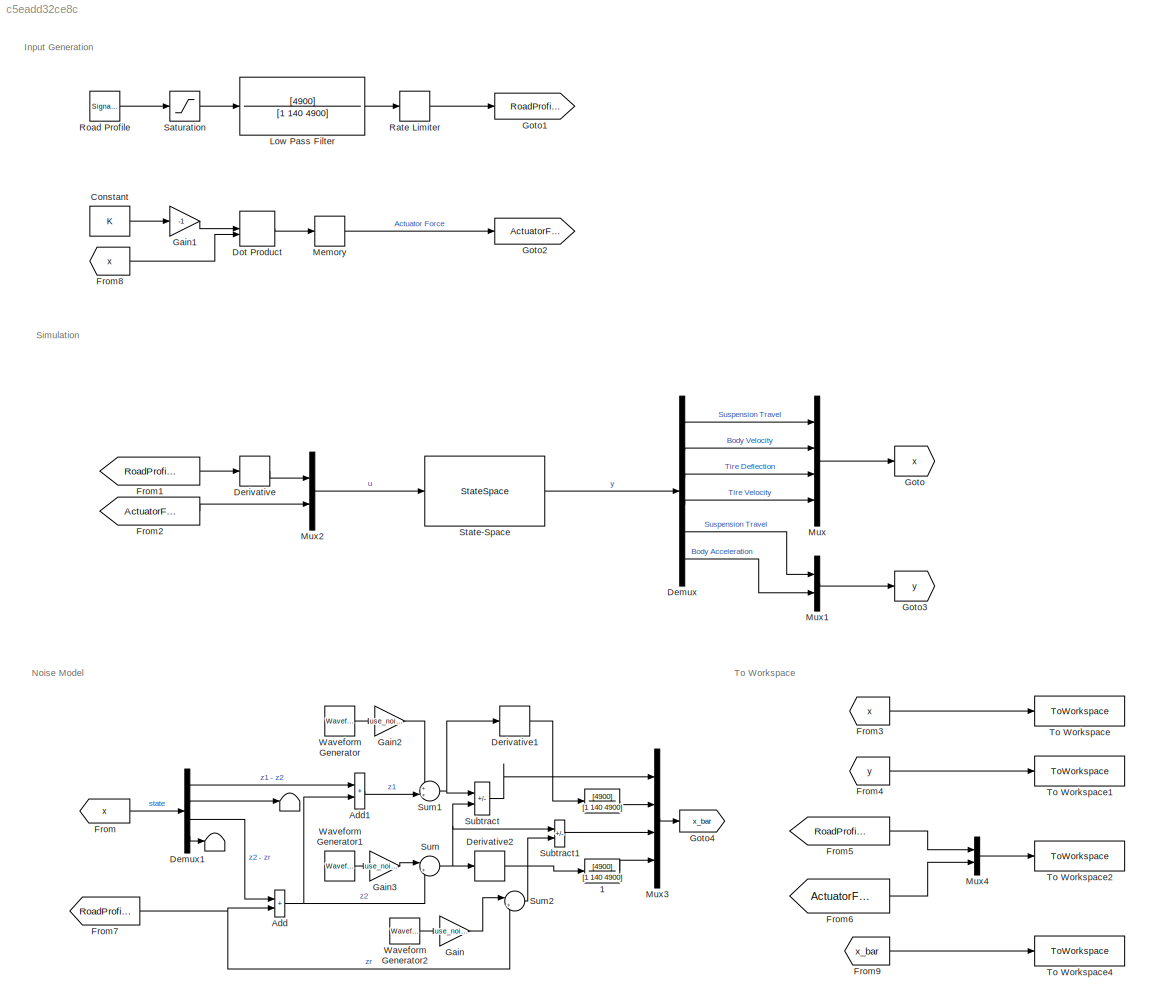
MODEL slx_c5eadd32ce8c
KIND model
CONFIG AbsTol = auto
CONFIG EnableMultiTasking = off
CONFIG FixedStep = 0.002
CONFIG MaxStep = auto
CONFIG MinStep = auto
CONFIG RelTol = 1e-3
CONFIG SampleTimeConstraint = Unconstrained
CONFIG SolverName = ode4
CONFIG StartTime = 0.0
CONFIG StopTime = 5
BLOCK [Terminator]  
BLOCK [Terminator]   
BLOCK [TransferFcn]    
  Denominator = [1 140 4900]
  Numerator = [4900]
BLOCK [TransferFcn]    1
  Denominator = [1 140 4900]
  Numerator = [4900]
BLOCK [Sum] Add
  IconShape = rectangular
  NameLocation = top
  Ports = [2, 1]
BLOCK [Sum] Add1
  IconShape = rectangular
  Ports = [2, 1]
BLOCK [Constant] Constant
  Value = K
BLOCK [Demux] Demux
  Outputs = 6
  Ports = [1, 6]
BLOCK [Demux] Demux1
  Ports = [1, 4]
BLOCK [Derivative] Derivative
BLOCK [Derivative] Derivative1
BLOCK [Derivative] Derivative2
BLOCK [DotProduct] Dot Product
  OutDataTypeStr = Inherit: Inherit via internal rule
BLOCK [From] From
  GotoTag = x
BLOCK [From] From1
  GotoTag = RoadProfile
BLOCK [From] From2
  GotoTag = ActuatorForce
BLOCK [From] From3
  GotoTag = x
BLOCK [From] From4
  GotoTag = y
BLOCK [From] From5
  GotoTag = RoadProfile
BLOCK [From] From6
  GotoTag = ActuatorForce
BLOCK [From] From7
  GotoTag = RoadProfile
BLOCK [From] From8
  GotoTag = x
BLOCK [From] From9
  GotoTag = x_bar
BLOCK [Gain] Gain
  Gain = use_noise
BLOCK [Gain] Gain1
  Gain = -1
BLOCK [Gain] Gain2
  Gain = use_noise
BLOCK [Gain] Gain3
  Gain = use_noise
BLOCK [Goto] Goto
  GotoTag = x
BLOCK [Goto] Goto1
  GotoTag = RoadProfile
BLOCK [Goto] Goto2
  GotoTag = ActuatorForce
BLOCK [Goto] Goto3
  GotoTag = y
BLOCK [Goto] Goto4
  GotoTag = x_bar
BLOCK [TransferFcn] Low Pass Filter 
  Denominator = [1 140 4900]
  Numerator = [4900]
BLOCK [Memory] Memory
BLOCK [Mux] Mux
  DisplayOption = bar
  Ports = [4, 1]
BLOCK [Mux] Mux1
  DisplayOption = bar
  Inputs = 2
  Ports = [2, 1]
BLOCK [Mux] Mux2
  DisplayOption = bar
  Inputs = 2
  Ports = [2, 1]
BLOCK [Mux] Mux3
  DisplayOption = bar
  Ports = [4, 1]
BLOCK [Mux] Mux4
  DisplayOption = bar
  Inputs = 2
  Ports = [2, 1]
BLOCK [RateLimiter] Rate Limiter
  FallingSlewLimit = -0.2
  RisingSlewLimit = 0.2
  SampleTimeMode = inherited
BLOCK [SignalGenerator] Road Profile 
  Amplitude = 0.01
  Frequency = 0.3
  Ports = [0, 1]
  WaveForm = square
BLOCK [Saturate] Saturation
  LowerLimit = -1
  UpperLimit = 1
BLOCK [StateSpace] State-Space
  A = A
  B = B
  C = [eye(4);C]
  D = [zeros(4,2);D]
  InitialCondition = 0
  Ports = [1, 1]
BLOCK [Sum] Subtract
  IconShape = rectangular
  Inputs = +-
  Ports = [2, 1]
BLOCK [Sum] Subtract1
  IconShape = rectangular
  Inputs = +-
  Ports = [2, 1]
BLOCK [Sum] Sum
  Inputs = |++
  Ports = [2, 1]
BLOCK [Sum] Sum1
  Inputs = ++|
  Ports = [2, 1]
BLOCK [Sum] Sum2
  Inputs = |++
  Ports = [2, 1]
BLOCK [ToWorkspace] To Workspace
  FixptAsFi = on
  MaxDataPoints = inf
  Ports = [1]
  SampleTime = -1
  SaveFormat = Timeseries
  VariableName = state
BLOCK [ToWorkspace] To Workspace1
  FixptAsFi = on
  MaxDataPoints = inf
  Ports = [1]
  SampleTime = -1
  SaveFormat = Timeseries
  VariableName = output
BLOCK [ToWorkspace] To Workspace2
  FixptAsFi = on
  MaxDataPoints = inf
  Ports = [1]
  SampleTime = -1
  SaveFormat = Timeseries
  VariableName = input
BLOCK [ToWorkspace] To Workspace4
  FixptAsFi = on
  MaxDataPoints = inf
  Ports = [1]
  SampleTime = -1
  SaveFormat = Timeseries
  VariableName = noisy_state
BLOCK [Reference] Waveform Generator  REF=simulink/Sources/Waveform
Generator
  Ports = [0, 1]
  SourceBlock = simulink/Sources/Waveform\nGenerator
  SourceProductBaseCode = SL
  SourceType = WaveformGenerator
BLOCK [Reference] Waveform Generator1  REF=simulink/Sources/Waveform
Generator
  Ports = [0, 1]
  SourceBlock = simulink/Sources/Waveform\nGenerator
  SourceProductBaseCode = SL
  SourceType = WaveformGenerator
BLOCK [Reference] Waveform Generator2  REF=simulink/Sources/Waveform
Generator
  Ports = [0, 1]
  SourceBlock = simulink/Sources/Waveform\nGenerator
  SourceProductBaseCode = SL
  SourceType = WaveformGenerator
ANNOTATION (root): Input Generation
ANNOTATION (root): Noise Model
ANNOTATION (root): Simulation
ANNOTATION (root): To Workspace
LINE    1:1 -> Mux3:4
LINE    :1 -> Mux3:2
LINE Add1:1 -> Sum1:2
NET Add:1 -> Add1:2, Sum:2
LINE Constant:1 -> Gain1:1
LINE Demux1:1 -> Add1:1
LINE Demux1:2 ->   :1
LINE Demux1:3 -> Add:1
LINE Demux1:4 ->  :1
LINE Demux:1 -> Mux:1
LINE Demux:2 -> Mux:2
LINE Demux:3 -> Mux:3
LINE Demux:4 -> Mux:4
LINE Demux:5 -> Mux1:1
LINE Demux:6 -> Mux1:2
LINE Derivative1:1 ->    :1
LINE Derivative2:1 ->    1:1
LINE Derivative:1 -> Mux2:1
LINE Dot Product:1 -> Memory:1
LINE From1:1 -> Derivative:1
LINE From2:1 -> Mux2:2
LINE From3:1 -> To Workspace:1
LINE From4:1 -> To Workspace1:1
LINE From5:1 -> Mux4:1
LINE From6:1 -> Mux4:2
NET From7:1 -> Add:2, Sum2:2
LINE From8:1 -> Dot Product:2
LINE From9:1 -> To Workspace4:1
LINE From:1 -> Demux1:1
LINE Gain1:1 -> Dot Product:1
LINE Gain2:1 -> Sum1:1
LINE Gain3:1 -> Sum:1
LINE Gain:1 -> Sum2:1
LINE Low Pass Filter :1 -> Rate Limiter:1
LINE Memory:1 -> Goto2:1
LINE Mux1:1 -> Goto3:1
LINE Mux2:1 -> State-Space:1
LINE Mux3:1 -> Goto4:1
LINE Mux4:1 -> To Workspace2:1
LINE Mux:1 -> Goto:1
LINE Rate Limiter:1 -> Goto1:1
LINE Road Profile :1 -> Saturation:1
LINE Saturation:1 -> Low Pass Filter :1
LINE State-Space:1 -> Demux:1
LINE Subtract1:1 -> Mux3:3
LINE Subtract:1 -> Mux3:1
NET Sum1:1 -> Derivative1:1, Subtract:1
LINE Sum2:1 -> Subtract1:2
NET Sum:1 -> Derivative2:1, Subtract1:1, Subtract:2
LINE Waveform Generator1:1 -> Gain3:1
LINE Waveform Generator2:1 -> Gain:1
LINE Waveform Generator:1 -> Gain2:1
note: NET lines group one-source signal fan-out (src -> all destinations, sorted); 1:1 wires keep LINE
